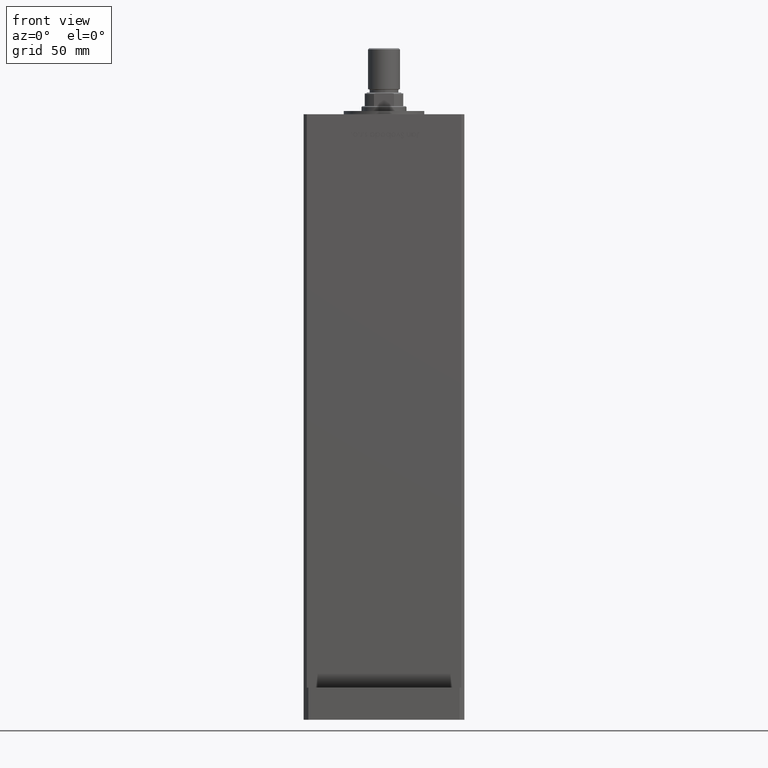
[diagram: clean part render]
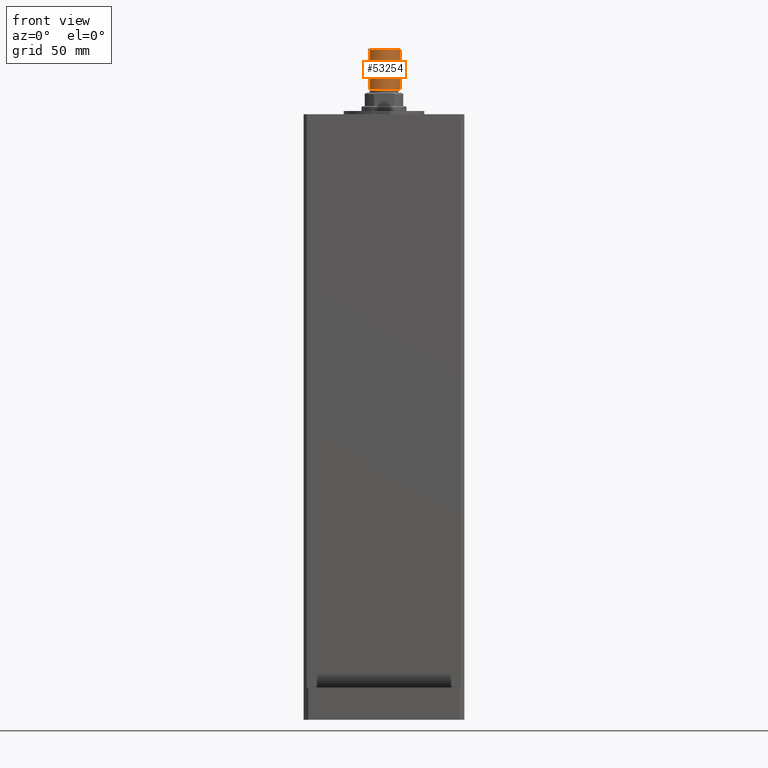
[diagram: same view with one face highlighted and labeled with its STEP entity id]
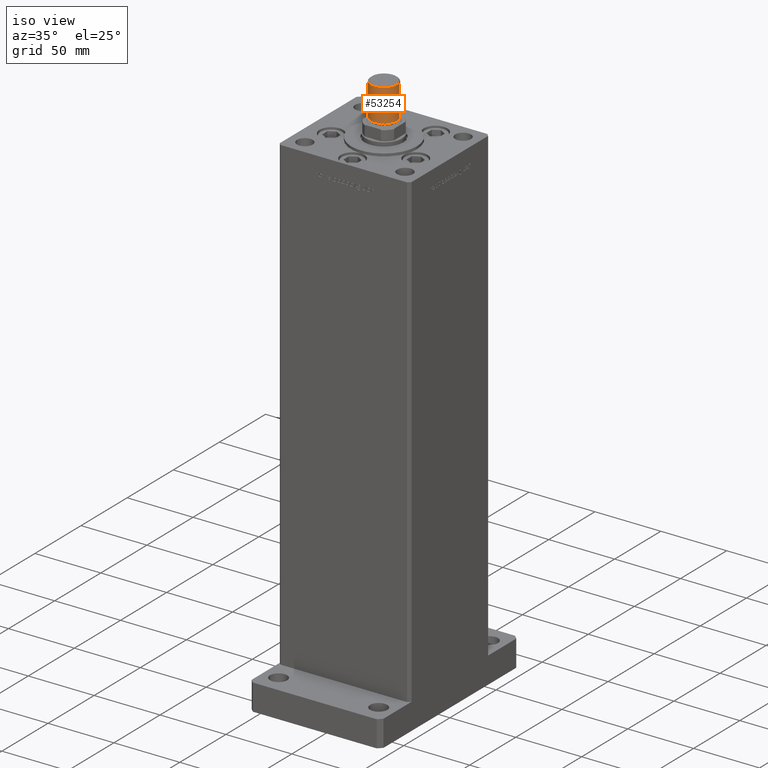
[diagram: same view with one face highlighted and labeled with its STEP entity id]
A machine part, front view. The second image highlights one B-rep face of the part: STEP entity #53254.
A second angle (iso view) of the same face is appended — the face is thin or edge-on in the first view.
In plain terms, the highlighted cylindrical surface (edge-blend (fillet) strip) has radius 10 mm, axis along (0, 0, 1).
Its self-contained STEP definition (entity closure, byte-faithful):
#1947 = DIRECTION ( 'NONE',  ( -0.000000000000000000, -0.000000000000000000, -1.000000000000000000 ) ) ;
#4367 = AXIS2_PLACEMENT_3D ( 'NONE', #25394, #54155, #12790 ) ;
#5489 = CARTESIAN_POINT ( 'NONE',  ( 0.000000000000000000, 0.000000000000000000, 25.50000000000000000 ) ) ;
#6593 = CARTESIAN_POINT ( 'NONE',  ( 10.00000000000000000, 1.224646799147353256E-15, 0.7999999999999986011 ) ) ;
#7768 = CARTESIAN_POINT ( 'NONE',  ( -10.00000000000000000, 0.000000000000000000, 0.7999999999999986011 ) ) ;
#8780 = CARTESIAN_POINT ( 'NONE',  ( 10.00000000000000000, 1.224646799147353256E-15, 25.50000000000000000 ) ) ;
#11974 = VECTOR ( 'NONE', #38522, 1000.000000000000000 ) ;
#12790 = DIRECTION ( 'NONE',  ( 1.000000000000000000, 0.000000000000000000, 0.000000000000000000 ) ) ;
#14851 = ORIENTED_EDGE ( 'NONE', *, *, #15187, .T. ) ;
#15187 = EDGE_CURVE ( 'NONE', #33459, #26695, #53330, .T. ) ;
#16903 = VERTEX_POINT ( 'NONE', #8780 ) ;
#17097 = EDGE_LOOP ( 'NONE', ( #50703, #50151, #53465, #14851 ) ) ;
#18081 = FACE_OUTER_BOUND ( 'NONE', #17097, .T. ) ;
#19849 = VERTEX_POINT ( 'NONE', #50876 ) ;
#24114 = CARTESIAN_POINT ( 'NONE',  ( 0.000000000000000000, 0.000000000000000000, 25.50000000000000000 ) ) ;
#25394 = CARTESIAN_POINT ( 'NONE',  ( 0.000000000000000000, 0.000000000000000000, 0.7999999999999986011 ) ) ;
#26695 = VERTEX_POINT ( 'NONE', #6593 ) ;
#30956 = CYLINDRICAL_SURFACE ( 'NONE', #40153, 10.00000000000000000 ) ;
#32969 = AXIS2_PLACEMENT_3D ( 'NONE', #24114, #36162, #49322 ) ;
#33459 = VERTEX_POINT ( 'NONE', #7768 ) ;
#33585 = DIRECTION ( 'NONE',  ( -0.000000000000000000, -0.000000000000000000, -1.000000000000000000 ) ) ;
#34152 = LINE ( 'NONE', #34937, #11974 ) ;
#34937 = CARTESIAN_POINT ( 'NONE',  ( 10.00000000000000000, 1.224646799147353256E-15, 25.50000000000000000 ) ) ;
#36162 = DIRECTION ( 'NONE',  ( 0.000000000000000000, 0.000000000000000000, 1.000000000000000000 ) ) ;
#37528 = EDGE_CURVE ( 'NONE', #19849, #33459, #45914, .T. ) ;
#38522 = DIRECTION ( 'NONE',  ( -0.000000000000000000, -0.000000000000000000, -1.000000000000000000 ) ) ;
#39716 = DIRECTION ( 'NONE',  ( -1.000000000000000000, 0.000000000000000000, 0.000000000000000000 ) ) ;
#40153 = AXIS2_PLACEMENT_3D ( 'NONE', #5489, #1947, #39716 ) ;
#43654 = EDGE_CURVE ( 'NONE', #19849, #16903, #51343, .T. ) ;
#44153 = VECTOR ( 'NONE', #33585, 1000.000000000000000 ) ;
#44339 = EDGE_CURVE ( 'NONE', #16903, #26695, #34152, .T. ) ;
#45914 = LINE ( 'NONE', #49490, #44153 ) ;
#49322 = DIRECTION ( 'NONE',  ( 1.000000000000000000, 0.000000000000000000, 0.000000000000000000 ) ) ;
#49490 = CARTESIAN_POINT ( 'NONE',  ( -10.00000000000000000, 0.000000000000000000, 25.50000000000000000 ) ) ;
#50151 = ORIENTED_EDGE ( 'NONE', *, *, #43654, .F. ) ;
#50703 = ORIENTED_EDGE ( 'NONE', *, *, #44339, .F. ) ;
#50876 = CARTESIAN_POINT ( 'NONE',  ( -10.00000000000000000, 0.000000000000000000, 25.50000000000000000 ) ) ;
#51343 = CIRCLE ( 'NONE', #32969, 10.00000000000000000 ) ;
#53254 = ADVANCED_FACE ( 'NONE', ( #18081 ), #30956, .T. ) ;
#53330 = CIRCLE ( 'NONE', #4367, 10.00000000000000000 ) ;
#53465 = ORIENTED_EDGE ( 'NONE', *, *, #37528, .T. ) ;
#54155 = DIRECTION ( 'NONE',  ( -0.000000000000000000, -0.000000000000000000, 1.000000000000000000 ) ) ;